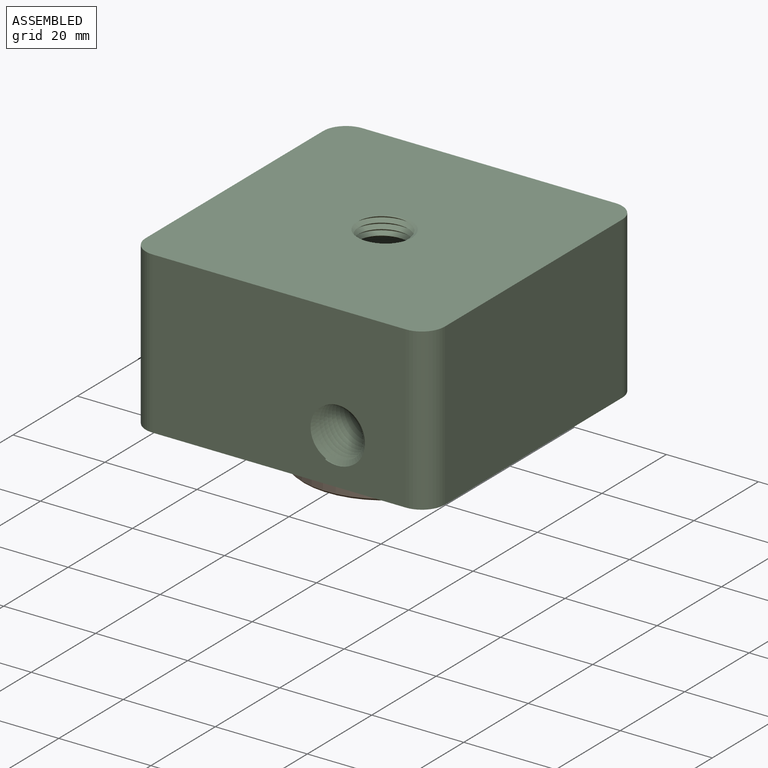
[diagram: assembled view]
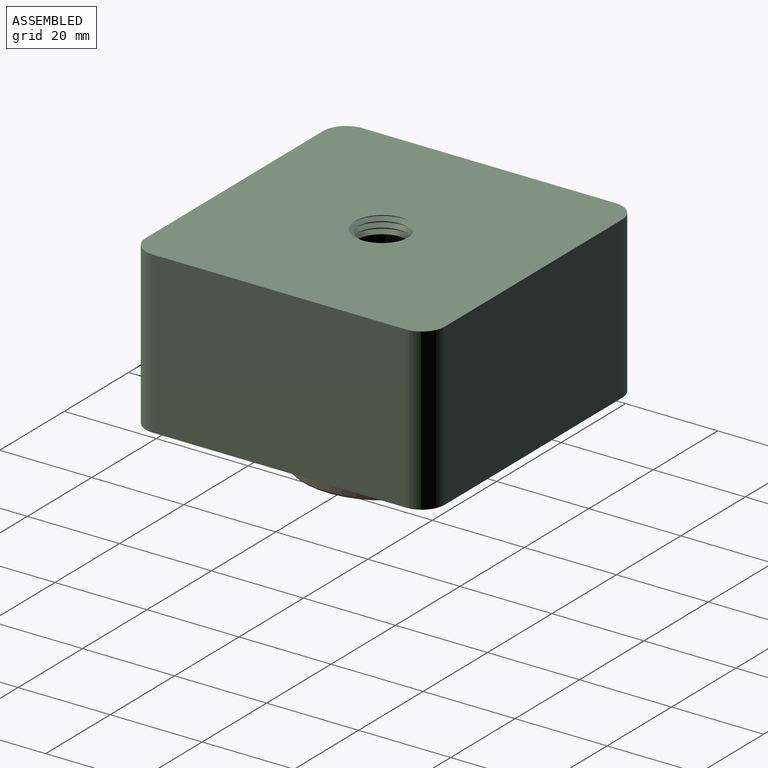
[diagram: assembled view, second angle]
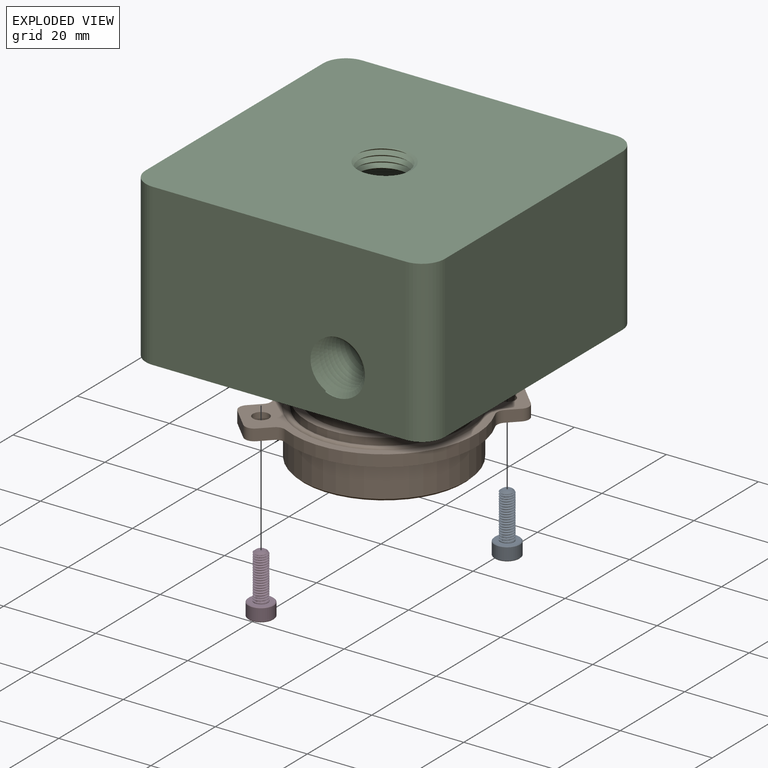
[diagram: exploded view]
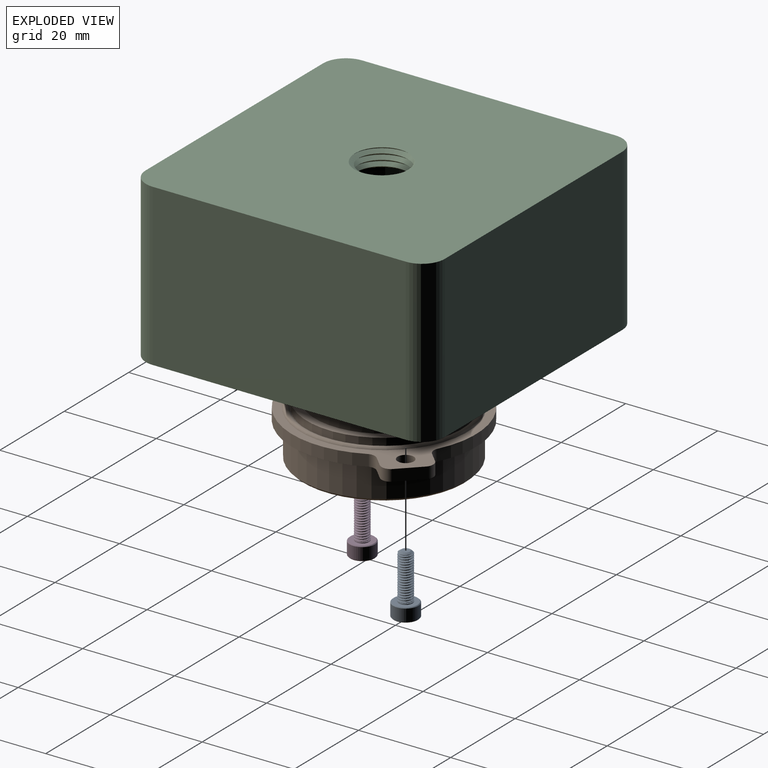
[diagram: exploded view, second angle]
ASSEMBLY  parts=4 mates=4
PART A: 45 faces, bbox 6x6x13.6 mm
  f0: cylinder r=1.5mm len=3mm, axis (0,0,1), area 0.3mm2, adj f1,f20,f21,f23,f24
  f1: cylinder r=1.5mm len=3mm, axis (0,0,1), area 0.6mm2, adj f0,f2,f20,f21
  f2: cylinder r=1.5mm len=3mm, axis (0,0,1), area 0.6mm2, adj f1,f3,f20,f21
  f3: cylinder r=1.5mm len=3mm, axis (0,0,1), area 0.6mm2, adj f2,f4,f20,f21
  f4: cylinder r=1.5mm len=3mm, axis (0,0,1), area 0.6mm2, adj f3,f5,f20,f21
  f5: cylinder r=1.5mm len=3mm, axis (0,0,1), area 0.6mm2, adj f4,f6,f20,f21
  f6: cylinder r=1.5mm len=3mm, axis (0,0,1), area 0.6mm2, adj f5,f7,f20,f21
  f7: cylinder r=1.5mm len=3mm, axis (0,0,1), area 0.6mm2, adj f6,f8,f20,f21
  f8: cylinder r=1.5mm len=3mm, axis (0,0,1), area 0.6mm2, adj f7,f9,f20,f21
  f9: cylinder r=1.5mm len=3mm, axis (0,0,1), area 0.6mm2, adj f8,f10,f20,f21
  f10: cylinder r=1.5mm len=3mm, axis (0,0,1), area 0.6mm2, adj f9,f11,f20,f21
  f11: cylinder r=1.5mm len=3mm, axis (0,0,1), area 0.6mm2, adj f10,f12,f20,f21
  f12: cylinder r=1.5mm len=3mm, axis (0,0,1), area 0.6mm2, adj f11,f13,f20,f21
  f13: cylinder r=1.5mm len=3mm, axis (0,0,1), area 0.6mm2, adj f12,f14,f20,f21
  f14: cylinder r=1.5mm len=3mm, axis (0,0,1), area 0.6mm2, adj f13,f15,f20,f21
  f15: cylinder r=1.5mm len=3mm, axis (0,0,1), area 0.6mm2, adj f14,f16,f20,f21
  f16: cylinder r=1.5mm len=3mm, axis (0,0,1), area 0.6mm2, adj f15,f17,f20,f21
  f17: cylinder r=1.5mm len=3mm, axis (0,0,1), area 0.6mm2, adj f16,f18,f20,f21
  f18: cylinder r=1.5mm len=3mm, axis (0,0,1), area 0.6mm2, adj f17,f19,f20,f21
  f19: cylinder r=1.5mm len=3mm, axis (0,0,1), area 1.4mm2, adj f18,f20,f21,f28,f44
  f20: bspline ~10.1x3.46mm, area 60.1mm2, adj f0,f1,f2,f3,f4,f5,f6,f7
  f21: bspline ~9.85x3.46mm, area 60.1mm2, adj f0,f1,f2,f3,f4,f5,f6,f7
  f22: cylinder r=1.18mm len=9.56mm, axis (0,0,-1), area 1.3mm2, adj f20,f21,f23,f44
  f23: cone r=0.92mm half-angle=55deg, axis (0,0,-1), area 3.5mm2, adj f0,f20,f22,f24,f25
  f24: cone r=0.92mm half-angle=55deg, axis (0,0,-1), area 0.1mm2, adj f0,f21,f23
  f25: plane 1.84x1.84mm, normal (0,0,1), area 2.7mm2, adj f23
  f26: cylinder r=2.75mm len=5.5mm, axis (0,0,1), area 46.1mm2, adj f42,f43
  f27: plane 5.17x5.17mm, normal (0,0,-1), area 14.4mm2, adj f29,f30,f31,f32,f33,f34,f42
  f28: plane 5.17x5.17mm, normal (0,0,1), area 13.9mm2, adj f19,f43
  f29: cone r=1.44mm half-angle=45deg, axis (0,0,-1), area 0mm2, adj f27,f36
  f30: cone r=1.44mm half-angle=45deg, axis (0,0,-1), area 0mm2, adj f27,f37
  f31: cone r=1.44mm half-angle=45deg, axis (0,0,-1), area 0mm2, adj f27,f38
  f32: cone r=1.44mm half-angle=45deg, axis (0,0,-1), area 0mm2, adj f27,f39
  f33: cone r=1.44mm half-angle=45deg, axis (0,0,-1), area 0mm2, adj f27,f40
  f34: cone r=1.44mm half-angle=45deg, axis (0,0,-1), area 0mm2, adj f27,f41
  f35: plane 2.89x2.5mm, normal (0,0,-1), area 5.4mm2, adj f36,f37,f38,f39,f40,f41
  f36: plane 2.42x1.8mm, normal (-0.5,-0.87,0), area 2.5mm2, adj f29,f35,f37,f41
  f37: plane 2.42x1.99mm, normal (-1,0,0), area 2.5mm2, adj f30,f35,f36,f38
  f38: plane 2.42x1.8mm, normal (-0.5,0.87,0), area 2.5mm2, adj f31,f35,f37,f39
  f39: plane 2.42x1.8mm, normal (0.5,0.87,0), area 2.5mm2, adj f32,f35,f38,f40
  f40: plane 2.42x1.99mm, normal (1,0,0), area 2.5mm2, adj f33,f35,f39,f41
  f41: plane 2.42x1.8mm, normal (0.5,-0.87,0), area 2.5mm2, adj f34,f35,f36,f40
  f42: cone r=2.58mm half-angle=45deg, axis (0,0,1), area 3.9mm2, adj f26,f27
  f43: cone r=2.75mm half-angle=45deg, axis (0,0,-1), area 3.9mm2, adj f26,f28
  f44: cone r=1.5mm half-angle=67.5deg, axis (0,0,-1), area 1.5mm2, adj f19,f20,f21,f22
PART B: 106 faces, bbox 52x40.8x18.4 mm
  f0: torus R=17.5mm, axis (0,0,-1), area 191.2mm2, adj f1,f77
  f1: plane 33.63x33.63mm, normal (0,0,1), area 6.6mm2, adj f0,f89
  f2: cylinder r=1.5mm len=3mm, axis (0,0,1), area 15.2mm2, adj f54,f67,f70,f79
  f3: cylinder r=1.5mm len=3mm, axis (0,0,1), area 15.2mm2, adj f54,f67,f70,f75
  f4: cylinder r=1.5mm len=3mm, axis (0,0,1), area 15.2mm2, adj f54,f67,f70,f73
  f5: cylinder r=15mm len=30mm, axis (0,0,1), area 282.7mm2, adj f53,f78
  f6: cylinder r=11.5mm len=23mm, axis (0,0,1), area 93.9mm2, adj f67,f71
  f7: cylinder r=1.12mm len=2.25mm, axis (0,0,1), area 12.4mm2, adj f69,f76
  f8: bspline ~0.86x0.25mm, area 0.1mm2, adj f10,f12,f13
  f9: bspline ~1.05x0.49mm, area 0.1mm2, adj f10,f11,f15
  f10: torus R=9.25mm, axis (0,0,-1), area 6.3mm2, adj f8,f9,f14,f16
  f11: torus R=7.75mm, axis (0,0,1), area 5.5mm2, adj f9,f12,f16,f61
  f12: torus R=6.25mm, axis (0,0,1), area 1.8mm2, adj f8,f11,f16,f62
  f13: cylinder r=0.1mm len=2.45mm, axis (0,0,-1), area 0.7mm2, adj f8,f14,f54,f62
  f14: cylinder r=9mm len=11.59mm, axis (0,0,-1), area 40.8mm2, adj f10,f13,f15,f54
  f15: cylinder r=0.1mm len=2.46mm, axis (0,0,-1), area 0.7mm2, adj f9,f14,f53,f54,f61
  f16: plane 11.19x9.11mm, normal (0,0,1), area 14.9mm2, adj f10,f11,f12
  f17: bspline ~0.77x0.44mm, area 0.1mm2, adj f19,f21,f22
  f18: bspline ~0.98x0.64mm, area 0.1mm2, adj f19,f20,f24
  f19: torus R=9.25mm, axis (0,0,-1), area 6.3mm2, adj f17,f18,f23,f25
  f20: torus R=7.75mm, axis (0,0,1), area 5.5mm2, adj f18,f21,f25,f59
  f21: torus R=6.25mm, axis (0,0,1), area 1.8mm2, adj f17,f20,f25,f60
  f22: cylinder r=0.1mm len=2.45mm, axis (0,0,-1), area 0.7mm2, adj f17,f23,f54,f60
  f23: cylinder r=9mm len=14.38mm, axis (0,0,-1), area 40.8mm2, adj f19,f22,f24,f54
  f24: cylinder r=0.1mm len=2.46mm, axis (0,0,-1), area 0.7mm2, adj f18,f23,f53,f54,f59
  f25: plane 13.67x4.52mm, normal (0,0,1), area 14.9mm2, adj f19,f20,f21
  f26: bspline ~0.77x0.44mm, area 0.1mm2, adj f28,f30,f31
  f27: bspline ~1.14x0.25mm, area 0.1mm2, adj f28,f29,f33
  f28: torus R=9.25mm, axis (0,0,-1), area 6.3mm2, adj f26,f27,f32,f34
  f29: torus R=7.75mm, axis (0,0,1), area 5.5mm2, adj f27,f30,f34,f57
  f30: torus R=6.25mm, axis (0,0,1), area 1.8mm2, adj f26,f29,f34,f58
  f31: cylinder r=0.1mm len=2.45mm, axis (0,0,-1), area 0.7mm2, adj f26,f32,f54,f58
  f32: cylinder r=9mm len=11.67mm, axis (0,0,-1), area 40.8mm2, adj f28,f31,f33,f54
  f33: cylinder r=0.1mm len=2.46mm, axis (0,0,-1), area 0.7mm2, adj f27,f32,f53,f54,f57
  f34: plane 11.32x8.98mm, normal (0,0,1), area 14.9mm2, adj f28,f29,f30
  f35: bspline ~0.63x0.62mm, area 0.1mm2, adj f37,f39,f40
  f36: bspline ~1.11x0.34mm, area 0.1mm2, adj f37,f38,f42
  f37: torus R=9.25mm, axis (0,0,-1), area 6.3mm2, adj f35,f36,f41,f43
  f38: torus R=7.75mm, axis (0,0,1), area 5.5mm2, adj f36,f39,f43,f55
  f39: torus R=6.25mm, axis (0,0,1), area 1.8mm2, adj f35,f38,f43,f56
  f40: cylinder r=0.1mm len=2.45mm, axis (0,0,-1), area 0.7mm2, adj f35,f41,f54,f56
  f41: cylinder r=9mm len=13.69mm, axis (0,0,-1), area 40.8mm2, adj f37,f40,f42,f54
  f42: cylinder r=0.1mm len=2.46mm, axis (0,0,-1), area 0.7mm2, adj f36,f41,f53,f54,f55
  f43: plane 13.09x6.55mm, normal (0,0,1), area 14.9mm2, adj f37,f38,f39
  f44: bspline ~0.87x0.76mm, area 0.1mm2, adj f46,f48,f63
  f45: bspline ~0.83x0.25mm, area 0.1mm2, adj f46,f47,f51
  f46: torus R=9.25mm, axis (0,0,-1), area 6.3mm2, adj f44,f45,f52,f64
  f47: torus R=6.25mm, axis (0,0,1), area 1.8mm2, adj f45,f48,f50,f52
  f48: torus R=7.75mm, axis (0,0,1), area 5.5mm2, adj f44,f47,f49,f52
  f49: cylinder r=8mm len=12.62mm, axis (0,0,-1), area 35.6mm2, adj f48,f50,f53,f54,f63
  f50: cylinder r=6.5mm len=4.7mm, axis (0,0,-1), area 12.3mm2, adj f47,f49,f51,f54
  f51: cylinder r=0.1mm len=2.45mm, axis (0,0,-1), area 0.7mm2, adj f45,f50,f54,f64
  f52: plane 12.92x6.76mm, normal (0,0,1), area 14.9mm2, adj f46,f47,f48
  f53: torus R=14.9mm, axis (0,0,-1), area 14.7mm2, adj f5,f15,f24,f33,f42,f49,f54,f55
  f54: plane 29.8x29.8mm, normal (0,0,1), area 527.7mm2, adj f2,f3,f4,f13,f14,f15,f22,f23
  f55: cylinder r=8mm len=10.17mm, axis (0,0,-1), area 35.6mm2, adj f38,f42,f53,f54,f56
  f56: cylinder r=6.5mm len=3.86mm, axis (0,0,-1), area 12.3mm2, adj f39,f40,f54,f55
  f57: cylinder r=8mm len=10.25mm, axis (0,0,-1), area 35.6mm2, adj f29,f33,f53,f54,f58
  f58: cylinder r=6.5mm len=4.6mm, axis (0,0,-1), area 12.3mm2, adj f30,f31,f54,f57
  f59: cylinder r=8mm len=11.98mm, axis (0,0,-1), area 35.6mm2, adj f20,f24,f53,f54,f60
  f60: cylinder r=6.5mm len=4.05mm, axis (0,0,-1), area 12.3mm2, adj f21,f22,f54,f59
  f61: cylinder r=8mm len=12.03mm, axis (0,0,-1), area 35.6mm2, adj f11,f15,f53,f54,f62
  f62: cylinder r=6.5mm len=4.89mm, axis (0,0,-1), area 12.3mm2, adj f12,f13,f54,f61
  f63: cylinder r=0.1mm len=2.46mm, axis (0,0,-1), area 0.7mm2, adj f44,f49,f53,f54,f64
  f64: cylinder r=9mm len=13.65mm, axis (0,0,-1), area 40.8mm2, adj f46,f51,f54,f63
  f65: cylinder r=1.5mm len=3mm, axis (0,0,1), area 15.2mm2, adj f54,f67,f70,f74
  f66: cylinder r=1.5mm len=3mm, axis (0,0,1), area 15.2mm2, adj f54,f67,f70,f72
  f67: plane 23x23mm, normal (0,0,-1), area 89.2mm2, adj f2,f3,f4,f6,f65,f66,f70
  f68: cylinder r=2.25mm len=4.5mm, axis (0,0,1), area 3.5mm2, adj f54,f69
  f69: plane 4.5x4.5mm, normal (0,0,1), area 11.9mm2, adj f7,f68
  f70: torus R=9.1mm, axis (0,0,-1), area 124.5mm2, adj f2,f3,f4,f65,f66,f67,f71,f72
  f71: plane 23x23mm, normal (0,0,1), area 31.2mm2, adj f6,f70
  f72: plane 2.62x2.46mm, normal (0,0,1), area 3.7mm2, adj f66,f70
  f73: plane 2.88x2.05mm, normal (0,0,1), area 3.7mm2, adj f4,f70
  f74: plane 2.77x2.26mm, normal (0,0,1), area 3.7mm2, adj f65,f70
  f75: plane 2.99x1.63mm, normal (0,0,1), area 3.7mm2, adj f3,f70
  f76: plane 2.25x2.25mm, normal (0,0,1), area 0.2mm2, adj f7,f86
  f77: plane 52x40mm, normal (0,0,1), area 320.6mm2, adj f0,f87,f88,f90,f91,f92,f93,f94
  f78: plane 33.5x33.5mm, normal (0,0,1), area 174.6mm2, adj f5,f89
  f79: plane 2.95x1.82mm, normal (0,0,1), area 3.7mm2, adj f2,f70
  f80: torus R=18.5mm, axis (0,0,-1), area 89.7mm2, adj f81,f82
  f81: cylinder r=18mm len=36mm, axis (0,0,1), area 757.8mm2, adj f80,f83
  f82: plane 52x40mm, normal (0,0,-1), area 284.6mm2, adj f80,f87,f88,f90,f91,f92,f93,f94
  f83: cone r=17.75mm half-angle=45deg, axis (0,0,1), area 78.9mm2, adj f81,f84
  f84: plane 35x35mm, normal (0,0,-1), area 962.1mm2, adj f83
  f85: sphere r=1.1mm, area 7.6mm2, adj f86
  f86: cylinder r=1.1mm len=3.75mm, axis (0,0,1), area 25.9mm2, adj f76,f85
  f87: cylinder r=1.75mm len=3.5mm, axis (0,0,1), area 27.5mm2, adj f77,f82
  f88: cylinder r=1.75mm len=3.5mm, axis (0,0,1), area 27.5mm2, adj f77,f82
  f89: cylinder r=16.75mm len=33.5mm, axis (0,0,-1), area 184.2mm2, adj f1,f78
  f90: cylinder r=20mm len=37.92mm, axis (0,0,1), area 124.7mm2, adj f77,f82,f94,f105
  f91: cylinder r=20mm len=37.92mm, axis (0,0,1), area 124.7mm2, adj f77,f82,f95,f104
  f92: cylinder r=2mm len=2.5mm, axis (0,0,1), area 7.9mm2, adj f77,f82,f93,f98
  f93: plane 3.14x2.5mm, normal (0,-1,0), area 7.9mm2, adj f77,f82,f92,f94
  f94: cylinder r=2mm len=2.5mm, axis (0,0,1), area 6.2mm2, adj f77,f82,f90,f93
  f95: cylinder r=2mm len=2.5mm, axis (0,0,1), area 6.2mm2, adj f77,f82,f91,f96
  f96: plane 3.14x2.5mm, normal (0,1,0), area 7.9mm2, adj f77,f82,f95,f97
  f97: cylinder r=2mm len=2.5mm, axis (0,0,1), area 7.9mm2, adj f77,f82,f96,f98
  f98: plane 6x2.5mm, normal (1,0,0), area 15mm2, adj f77,f82,f92,f97
  f99: plane 3.14x2.5mm, normal (0,-1,0), area 7.9mm2, adj f77,f82,f100,f105
  f100: cylinder r=2mm len=2.5mm, axis (0,0,1), area 7.9mm2, adj f77,f82,f99,f101
  f101: plane 6x2.5mm, normal (-1,0,0), area 15mm2, adj f77,f82,f100,f102
  f102: cylinder r=2mm len=2.5mm, axis (0,0,1), area 7.9mm2, adj f77,f82,f101,f103
  f103: plane 3.14x2.5mm, normal (0,1,0), area 7.9mm2, adj f77,f82,f102,f104
  f104: cylinder r=2mm len=2.5mm, axis (0,0,1), area 6.2mm2, adj f77,f82,f91,f103
  f105: cylinder r=2mm len=2.5mm, axis (0,0,1), area 6.2mm2, adj f77,f82,f90,f99
PART C: 49 faces, bbox 65.8x66.6x36.4 mm
  f0: bspline ~12.7x12.69mm, area 129.9mm2, adj f1,f11,f31,f47,f48
  f1: bspline ~12.7x12.69mm, area 152mm2, adj f0,f11,f31,f47,f48
  f2: cylinder r=6.35mm len=1.31mm, axis (0,-1,0), area 0mm2, adj f10,f19,f42
  f3: cylinder r=6.35mm len=11.94mm, axis (0,-1,0), area 7.7mm2, adj f10,f12,f20,f40,f42
  f4: cylinder r=6.35mm len=12.41mm, axis (0,-1,0), area 1.2mm2, adj f13,f21,f42
  f5: cylinder r=6.35mm len=12.67mm, axis (0,-1,0), area 1.3mm2, adj f14,f22,f42
  f6: cylinder r=6.35mm len=12.7mm, axis (0,-1,0), area 1.5mm2, adj f15,f23,f42
  f7: cylinder r=6.35mm len=12.7mm, axis (0,-1,0), area 1.7mm2, adj f16,f24,f42
  f8: cylinder r=6.35mm len=12.7mm, axis (0,-1,0), area 2.1mm2, adj f17,f25,f42
  f9: cylinder r=6.35mm len=16.91mm, axis (0,-1,0), area 122.3mm2, adj f18,f25,f29,f41,f42
  f10: cone r=0mm half-angle=59deg, axis (0,-1,0), area 27.5mm2, adj f2,f3,f19,f40,f42
  f11: cylinder r=6.35mm len=12.7mm, axis (0,0,1), area 7.7mm2, adj f0,f1,f31,f44
  f12: bspline ~9.53x7.73mm, area 7.9mm2, adj f3,f19,f40,f42
  f13: bspline ~14.66x9.53mm, area 16.9mm2, adj f4,f20,f42
  f14: bspline ~14.66x9.53mm, area 19.1mm2, adj f5,f21,f42
  f15: bspline ~14.66x9.53mm, area 21.7mm2, adj f6,f22,f42
  f16: bspline ~14.66x9.53mm, area 25mm2, adj f7,f23,f42
  f17: bspline ~14.66x12.7mm, area 30.1mm2, adj f8,f24,f42
  f18: bspline ~18.38x14.66mm, area 559.3mm2, adj f9,f25,f29,f42
  f19: bspline ~9.53x7.73mm, area 7.2mm2, adj f2,f10,f12,f40,f42
  f20: bspline ~14.66x9.53mm, area 16.3mm2, adj f3,f13,f42
  f21: bspline ~14.66x9.53mm, area 18.3mm2, adj f4,f14,f42
  f22: bspline ~14.66x9.53mm, area 20.7mm2, adj f5,f15,f42
  f23: bspline ~14.66x9.53mm, area 23.7mm2, adj f6,f16,f42
  f24: bspline ~14.66x12.7mm, area 27.9mm2, adj f7,f17,f42
  f25: bspline ~18.8x14.66mm, area 580mm2, adj f8,f9,f18,f29,f41,f42
  f26: plane 55x35mm, normal (1,0,0), area 1925mm2, adj f30,f31,f32,f33
  f27: plane 55x35mm, normal (0,1,0), area 1925mm2, adj f30,f31,f33,f34
  f28: plane 55x35mm, normal (-1,0,0), area 1925mm2, adj f30,f31,f34,f35
  f29: plane 55.81x35.81mm, normal (0,-1,0), area 1814.5mm2, adj f9,f18,f25,f30,f31,f32,f35,f41
  f30: plane 65x65mm, normal (0,0,-1), area 3285.8mm2, adj f26,f27,f28,f29,f32,f33,f34,f35
  f31: plane 65.78x65.78mm, normal (0,0,1), area 4093.9mm2, adj f0,f1,f11,f26,f27,f28,f29,f32
  f32: cylinder r=5mm len=35mm, axis (0,0,-1), area 274.9mm2, adj f26,f29,f30,f31
  f33: cylinder r=5mm len=35mm, axis (0,0,1), area 274.9mm2, adj f26,f27,f30,f31
  f34: cylinder r=5mm len=35mm, axis (0,0,-1), area 274.9mm2, adj f27,f28,f30,f31
  f35: cylinder r=5mm len=35mm, axis (0,0,1), area 274.9mm2, adj f28,f29,f30,f31
  f36: cylinder r=1.25mm len=25mm, axis (0,0,-1), area 196.3mm2, adj f30,f37
  f37: cone r=0mm half-angle=59deg, axis (0,0,-1), area 5.7mm2, adj f36
  f38: cylinder r=1.25mm len=25mm, axis (0,0,-1), area 196.3mm2, adj f30,f39
  f39: cone r=0mm half-angle=59deg, axis (0,0,-1), area 5.7mm2, adj f38
  f40: plane 1.11x0.96mm, normal (0.39,0,-0.92), area 0.6mm2, adj f3,f10,f12,f19
  f41: plane 0.32x0.18mm, normal (1,0,-0.01), area 0mm2, adj f9,f25,f29
  f42: cylinder r=17mm len=34mm, axis (0,0,-1), area 2530.8mm2, adj f2,f3,f4,f5,f6,f7,f8,f9
  f43: cone r=0mm half-angle=59deg, axis (0,0,-1), area 18.6mm2, adj f42,f46
  f44: cone r=0mm half-angle=59deg, axis (0,0,-1), area 128.3mm2, adj f11,f45,f48
  f45: plane 33.7x33.7mm, normal (0,0,-1), area 655.3mm2, adj f44,f46
  f46: cylinder r=16.85mm len=33.7mm, axis (0,0,1), area 519.8mm2, adj f43,f45
  f47: plane 1.2x0.96mm, normal (0.39,-0.92,0), area 0.6mm2, adj f0,f1,f48
  f48: cylinder r=6.35mm len=12.7mm, axis (0,0,-1), area 27.5mm2, adj f0,f1,f44,f47
PART D: same geometry as A
PLACE A rot(axis=(0,0,1),45deg) t=(13.33,31.57,1.91)mm
PLACE B rot(axis=(0,0,1),45deg) t=(-2.4,15.84,-15.96)mm
PLACE C t=(-2.42,15.82,-5.76)mm fixed
PLACE D rot(axis=(0,0,1),45deg) t=(-18.14,0.1,1.74)mm
MATE fastened D.f0 <-> B.f87  axis (0,0,1) through (-18.14,0.1,-8.26)mm
MATE revolute B.f88 <-> C.f38  axis (0,0,1) through (13.33,31.57,-5.76)mm
MATE fastened A.f0 <-> B.f88  axis (0,0,-1) through (13.33,31.57,-8.26)mm
MATE revolute B.f87 <-> C.f36  axis (0,0,1) through (-18.14,0.1,-5.76)mm
